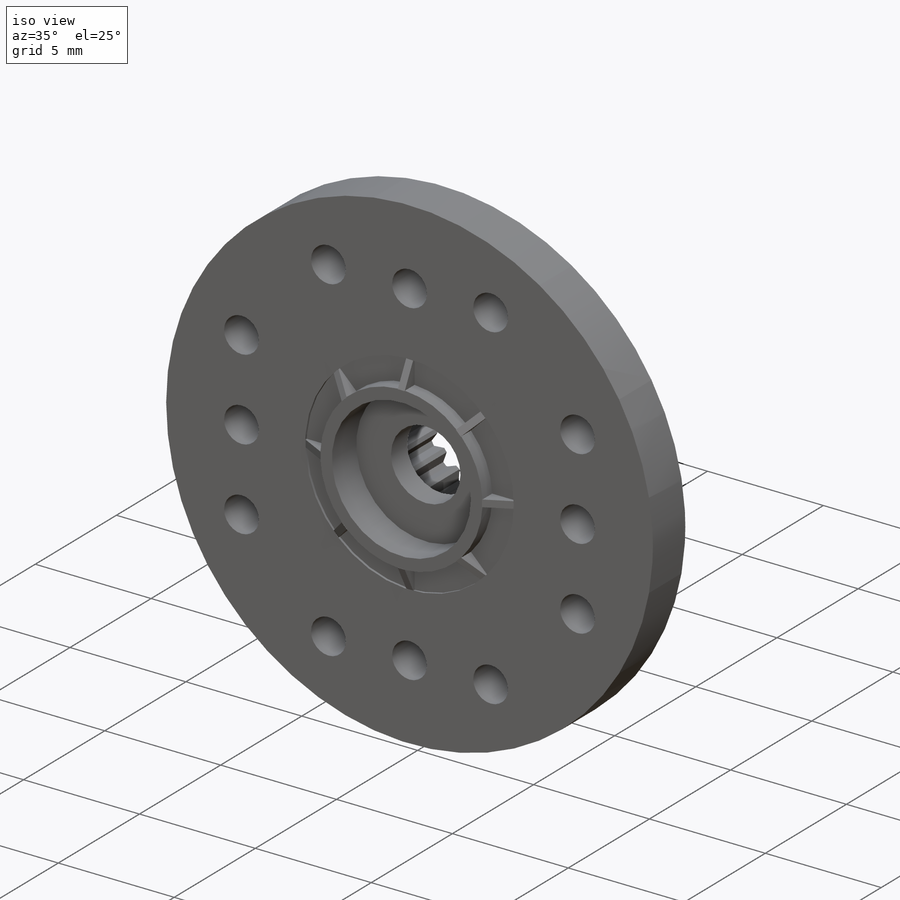
[diagram: iso view]
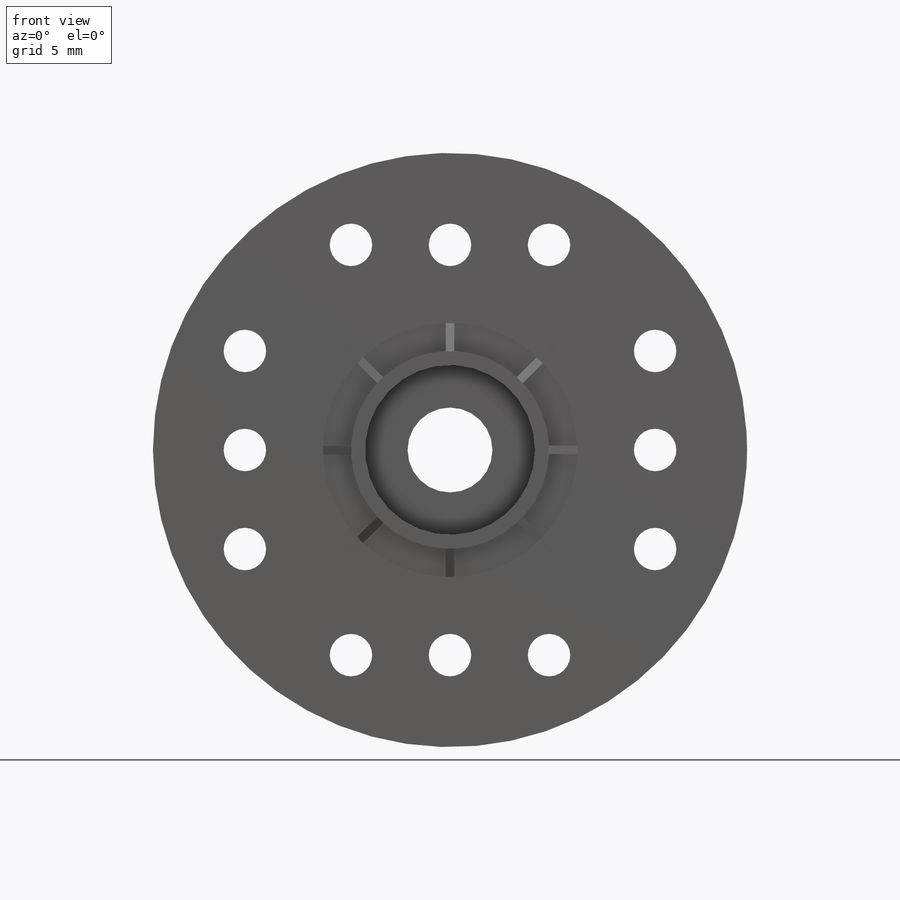
[diagram: front view]
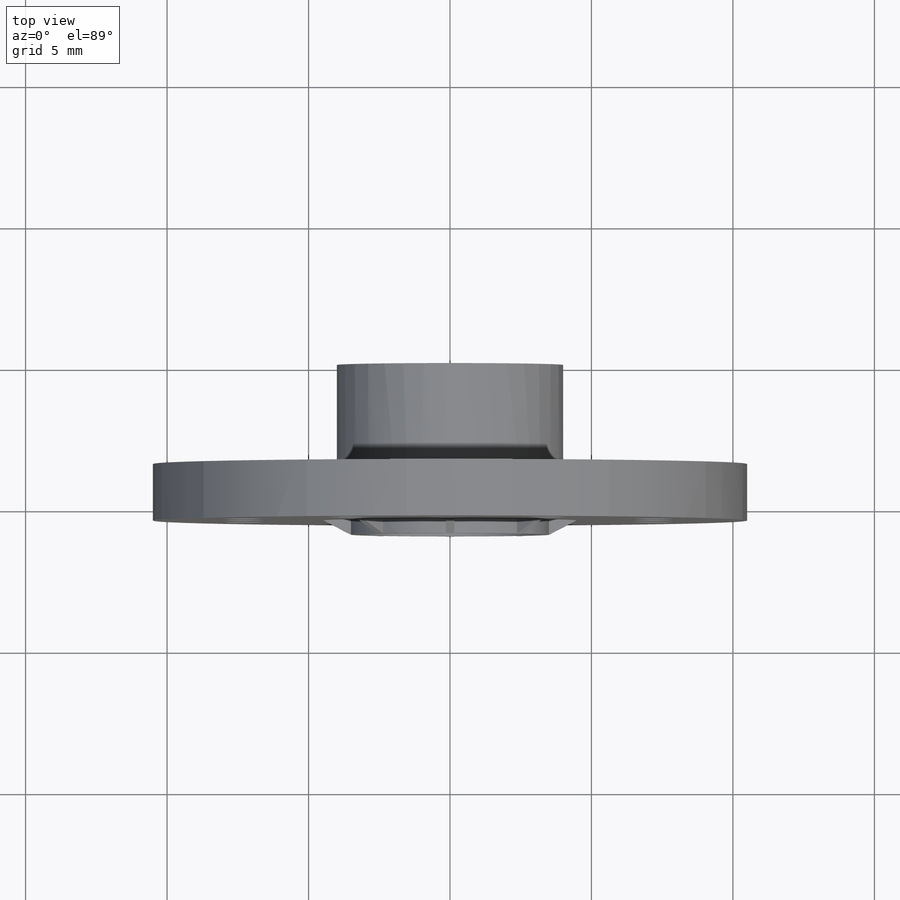
[diagram: top view]
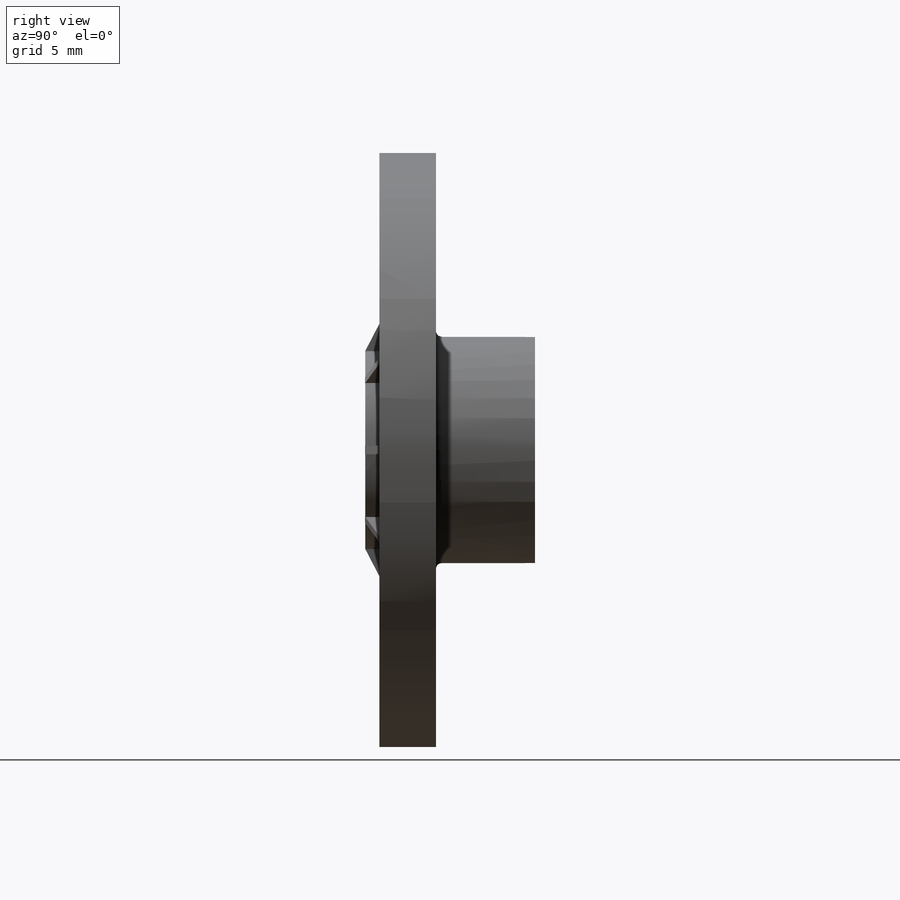
[diagram: right view]
SOLIDWORKS PART (.sldprt)
format: sldprt  version: not decoded by parser v0  size: 480,768 bytes
history: native  units: mm
features: sketch x9, cut_extrude x5, extrude x4, plane x3, pattern_circular x2, material x1, fillet x1 (+10 scaffold rows collapsed)
feature tree (35):
  scaffold x10  (default folders/planes/origin — collapsed)
  material  "材质 <未指定>"
  plane  "前视基准面"
  plane  "上视基准面"
  plane  "右视基准面"
  sketch  "草图1"  dims[D1=5.8mm D2=8.0mm]
  extrude  "凸台-拉伸1"  Depth=3.5mm
  sketch  "草图2"  dims[D1=0.6mm D2=0.2mm D3=0.42mm]
  cut_extrude  "切除-拉伸1"  [1 undecoded]
  pattern_circular  "阵列(圆周)1"  Count=30 Angle=15deg
  sketch  "草图3"  dims[D1=21.0mm]
  extrude  "凸台-拉伸2"  Depth=2mm
  sketch  "草图4"  dims[D1=6.0mm D2=3.0mm D3=7.0mm D4=9.0mm]
  cut_extrude  "切除-拉伸2"  Depth=2mm
  cut_extrude  "切除-拉伸3"  [1 undecoded]
  sketch  "草图4<3>"  dims[D1=1.0mm]
  cut_extrude  "切除-拉伸4"  [1 undecoded]
  sketch  "草图4<4>"  dims[D1=0.1mm]
  sketch  "草图5"  dims[D1=0.0mm]
  extrude  "凸台-拉伸4"  Depth=0.5mm
  sketch  "草图8"
  extrude  "凸台-拉伸8"  Depth=0.3mm
  pattern_circular  "阵列(圆周)2"  Count=30 Angle=45deg
  sketch  "草图9"  dims[D3=1.5mm D1=14.5mm D2=14.5mm D4=7.0mm D5=4.0]
  cut_extrude  "切除-拉伸6"  [1 undecoded]
  fillet  "圆角1"  Radius=0.2mm
decode coverage: 16 of 21 modeling features carry decoded parameters
note: 4 parameter values undecoded
summary: no parameter record found for 4 features
note: suppression state not decoded; provenance and decode notes live in map.json
